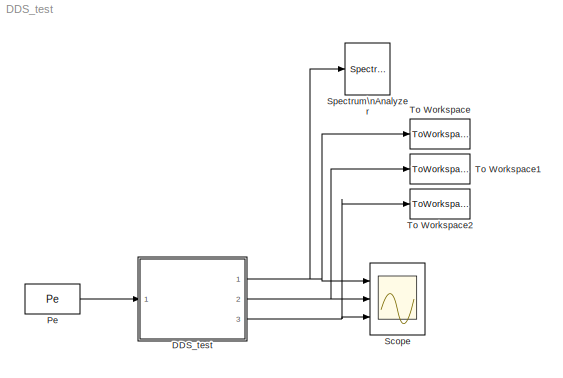
MODEL DDS_test
KIND model
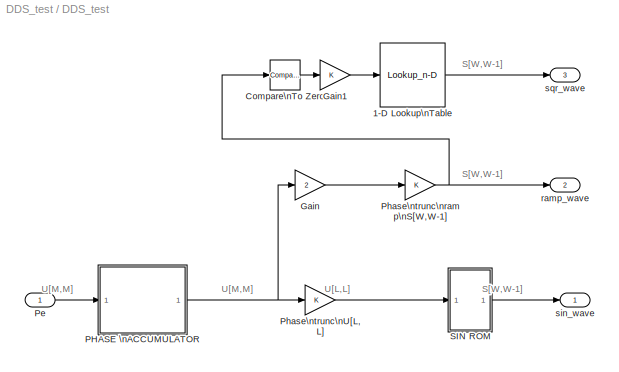
BLOCK [SubSystem] DDS_test
  Ports = [1, 3]
  RequestExecContextInheritance = off
  SID = 1
BLOCK [Lookup_n-D] DDS_test/1-D Lookup\nTable
  BreakpointsForDimension1 = [0:1]
  InternalRulePriority = Speed
  NumberOfTableDimensions = 1
  Ports = [1, 1]
  RndMeth = Simplest
  SID = 68
  Table = [ -1+2^-(W-1) 1-2^-(W-1)]
BLOCK [Reference] DDS_test/Compare\nTo Zero  REF=simulink/Logic and Bit\nOperations/Compare\nTo Zero
  OutDataTypeStr = boolean
  Ports = [1, 1]
  SID = 69
  SourceBlock = simulink/Logic and Bit\nOperations/Compare\nTo Zero
  SourceProductBaseCode = SL
  SourceProductName = Simulink
  SourceType = Compare To Zero
  ZeroCross = on
  relop = >=
BLOCK [Gain] DDS_test/Gain
  Gain = 2
  OutDataTypeStr = Inherit: Inherit via internal rule
  ParamDataTypeStr = Inherit: Inherit via internal rule
  SID = 48
  SaturateOnIntegerOverflow = off
BLOCK [Gain] DDS_test/Gain1
  OutDataTypeStr = double
  ParamDataTypeStr = Inherit: Inherit via internal rule
  SID = 70
  SaturateOnIntegerOverflow = off
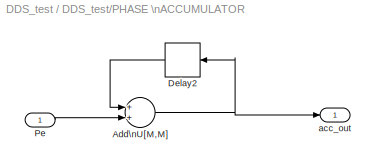
BLOCK [SubSystem] DDS_test/PHASE \nACCUMULATOR
  Ports = [1, 1]
  RequestExecContextInheritance = off
  SID = 19
BLOCK [Sum] DDS_test/PHASE \nACCUMULATOR/Add\nU[M,M]
  AccumDataTypeStr = fixdt(0,M,M)
  InputSameDT = off
  OutDataTypeStr = fixdt(0,M,M)
  Ports = [2, 1]
  RndMeth = Convergent
  SID = 3
  SaturateOnIntegerOverflow = off
BLOCK [Delay] DDS_test/PHASE \nACCUMULATOR/Delay2
  DelayLength = 1
  InputPortMap = u0
  Ports = [1, 1]
  SID = 4
BLOCK [Inport] DDS_test/PHASE \nACCUMULATOR/Pe
  IconDisplay = Port number
  SID = 20
BLOCK [Outport] DDS_test/PHASE \nACCUMULATOR/acc_out
  IconDisplay = Port number
  SID = 21
BLOCK [Inport] DDS_test/Pe
  IconDisplay = Port number
  SID = 2
BLOCK [Gain] DDS_test/Phase\ntrunc\nU[L,L]
  OutDataTypeStr = fixdt(0,L,L)
  ParamDataTypeStr = Inherit: Inherit via internal rule
  SID = 6
  SaturateOnIntegerOverflow = off
BLOCK [Gain] DDS_test/Phase\ntrunc\nramp\nS[W,W-1]
  OutDataTypeStr = fixdt(1,W,W-1)
  ParamDataTypeStr = Inherit: Inherit via internal rule
  SID = 23
  SaturateOnIntegerOverflow = off
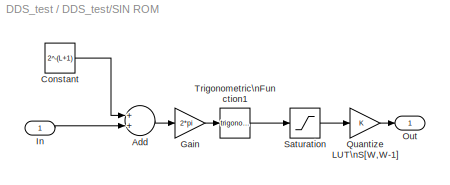
BLOCK [SubSystem] DDS_test/SIN ROM
  Ports = [1, 1]
  RequestExecContextInheritance = off
  SID = 7
BLOCK [Sum] DDS_test/SIN ROM/Add
  InputSameDT = off
  OutDataTypeStr = Inherit: Inherit via internal rule
  Ports = [2, 1]
  SID = 9
  SaturateOnIntegerOverflow = off
BLOCK [Constant] DDS_test/SIN ROM/Constant
  SID = 10
  Value = 2^-(L+1)
BLOCK [Gain] DDS_test/SIN ROM/Gain
  Gain = 2*pi
  OutDataTypeStr = Inherit: Inherit via internal rule
  ParamDataTypeStr = Inherit: Inherit via internal rule
  SID = 11
  SaturateOnIntegerOverflow = off
BLOCK [Inport] DDS_test/SIN ROM/In
  IconDisplay = Port number
  SID = 8
BLOCK [Outport] DDS_test/SIN ROM/Out
  IconDisplay = Port number
  SID = 14
BLOCK [Gain] DDS_test/SIN ROM/Quantize LUT\nS[W,W-1]
  OutDataTypeStr = fixdt(1,W,W-1)
  ParamDataTypeStr = Inherit: Inherit via internal rule
  RndMeth = Round
  SID = 12
BLOCK [Saturate] DDS_test/SIN ROM/Saturation
  InputPortMap = u0
  LowerLimit = -(1-2^-(W-1))
  Ports = [1, 1]
  SID = 64
  UpperLimit = 1-2^-(W-1)
BLOCK [Trigonometry] DDS_test/SIN ROM/Trigonometric\nFunction1
  Ports = [1, 1]
  SID = 13
BLOCK [Outport] DDS_test/ramp_wave
  IconDisplay = Port number
  Port = 2
  SID = 22
BLOCK [Outport] DDS_test/sin_wave
  IconDisplay = Port number
  SID = 15
BLOCK [Outport] DDS_test/sqr_wave
  IconDisplay = Port number
  Port = 3
  SID = 24
BLOCK [Constant] Pe
  SID = 16
  SampleTime = 1/fclk
  Value = Pe
BLOCK [Scope] Scope
  Floating = off
  NumInputPorts = 3
  Ports = [3]
  SID = 17
  ScopeSpecificationString = Simulink.scopes.TimeScopeBlockCfg('CurrentConfiguration', extmgr.ConfigurationSet(extmgr.Configuration('Core','General UI',true),extmgr.Configuration('Core','Source UI',true),extmgr.Configuration('Sources','WiredSimulink',true,'DataLoggingLimitDataPoints',true,'DataLoggingSaveFormat','Array','DataLoggingDecimation','1','DataLoggingDecimateData',true),extmgr.Configuration('Visuals','Time Domain',tr...<+3005ch>
BLOCK [SpectrumAnalyzer] Spectrum\nAnalyzer
  Ports = [1]
  SID = 63
  ScopeSpecificationString = spbscopes.SpectrumAnalyzerBlockCfg('CurrentConfiguration', extmgr.ConfigurationSet(extmgr.Configuration('Core','General UI',true),extmgr.Configuration('Core','Source UI',true),extmgr.Configuration('Sources','WiredSimulink',true),extmgr.Configuration('Sources','Workspace',false),extmgr.Configuration('Sources','SPTool',false),extmgr.Configuration('Sources','File',false),extmgr.Configuration('Sources...<+2663ch>
BLOCK [ToWorkspace] To Workspace
  MaxDataPoints = inf
  Ports = [1]
  SID = 65
  SampleTime = -1
  Save2DSignal = 2-D array (concatenate along first dimension)
  VariableName = sin_wave
BLOCK [ToWorkspace] To Workspace1
  MaxDataPoints = inf
  Ports = [1]
  SID = 66
  SampleTime = -1
  Save2DSignal = 2-D array (concatenate along first dimension)
  VariableName = ramp_wave
BLOCK [ToWorkspace] To Workspace2
  MaxDataPoints = inf
  Ports = [1]
  SID = 67
  SampleTime = -1
  Save2DSignal = 2-D array (concatenate along first dimension)
  VariableName = sqr_wave
ANNOTATION DDS_test: S[W,W-1]
ANNOTATION DDS_test: U[L,L]
ANNOTATION DDS_test: U[M,M]
LINE DDS_test/1-D Lookup\nTable:1 -> DDS_test/sqr_wave:1
LINE DDS_test/Compare\nTo Zero:1 -> DDS_test/Gain1:1
LINE DDS_test/Gain1:1 -> DDS_test/1-D Lookup\nTable:1
LINE DDS_test/Gain:1 -> DDS_test/Phase\ntrunc\nramp\nS[W,W-1]:1
NET DDS_test/PHASE \nACCUMULATOR/Add\nU[M,M]:1 -> DDS_test/PHASE \nACCUMULATOR/Delay2:1, DDS_test/PHASE \nACCUMULATOR/acc_out:1
LINE DDS_test/PHASE \nACCUMULATOR/Delay2:1 -> DDS_test/PHASE \nACCUMULATOR/Add\nU[M,M]:1
LINE DDS_test/PHASE \nACCUMULATOR/Pe:1 -> DDS_test/PHASE \nACCUMULATOR/Add\nU[M,M]:2
NET DDS_test/PHASE \nACCUMULATOR:1 -> DDS_test/Gain:1, DDS_test/Phase\ntrunc\nU[L,L]:1
LINE DDS_test/Pe:1 -> DDS_test/PHASE \nACCUMULATOR:1
LINE DDS_test/Phase\ntrunc\nU[L,L]:1 -> DDS_test/SIN ROM:1
NET DDS_test/Phase\ntrunc\nramp\nS[W,W-1]:1 -> DDS_test/Compare\nTo Zero:1, DDS_test/ramp_wave:1
LINE DDS_test/SIN ROM/Add:1 -> DDS_test/SIN ROM/Gain:1
LINE DDS_test/SIN ROM/Constant:1 -> DDS_test/SIN ROM/Add:1
LINE DDS_test/SIN ROM/Gain:1 -> DDS_test/SIN ROM/Trigonometric\nFunction1:1
LINE DDS_test/SIN ROM/In:1 -> DDS_test/SIN ROM/Add:2
LINE DDS_test/SIN ROM/Quantize LUT\nS[W,W-1]:1 -> DDS_test/SIN ROM/Out:1
LINE DDS_test/SIN ROM/Saturation:1 -> DDS_test/SIN ROM/Quantize LUT\nS[W,W-1]:1
LINE DDS_test/SIN ROM/Trigonometric\nFunction1:1 -> DDS_test/SIN ROM/Saturation:1
LINE DDS_test/SIN ROM:1 -> DDS_test/sin_wave:1
NET DDS_test:1 -> Scope:1, Spectrum\nAnalyzer:1, To Workspace:1
NET DDS_test:2 -> Scope:2, To Workspace1:1
NET DDS_test:3 -> Scope:3, To Workspace2:1
LINE Pe:1 -> DDS_test:1
note: NET lines group one-source signal fan-out (src -> all destinations, sorted); 1:1 wires keep LINE
